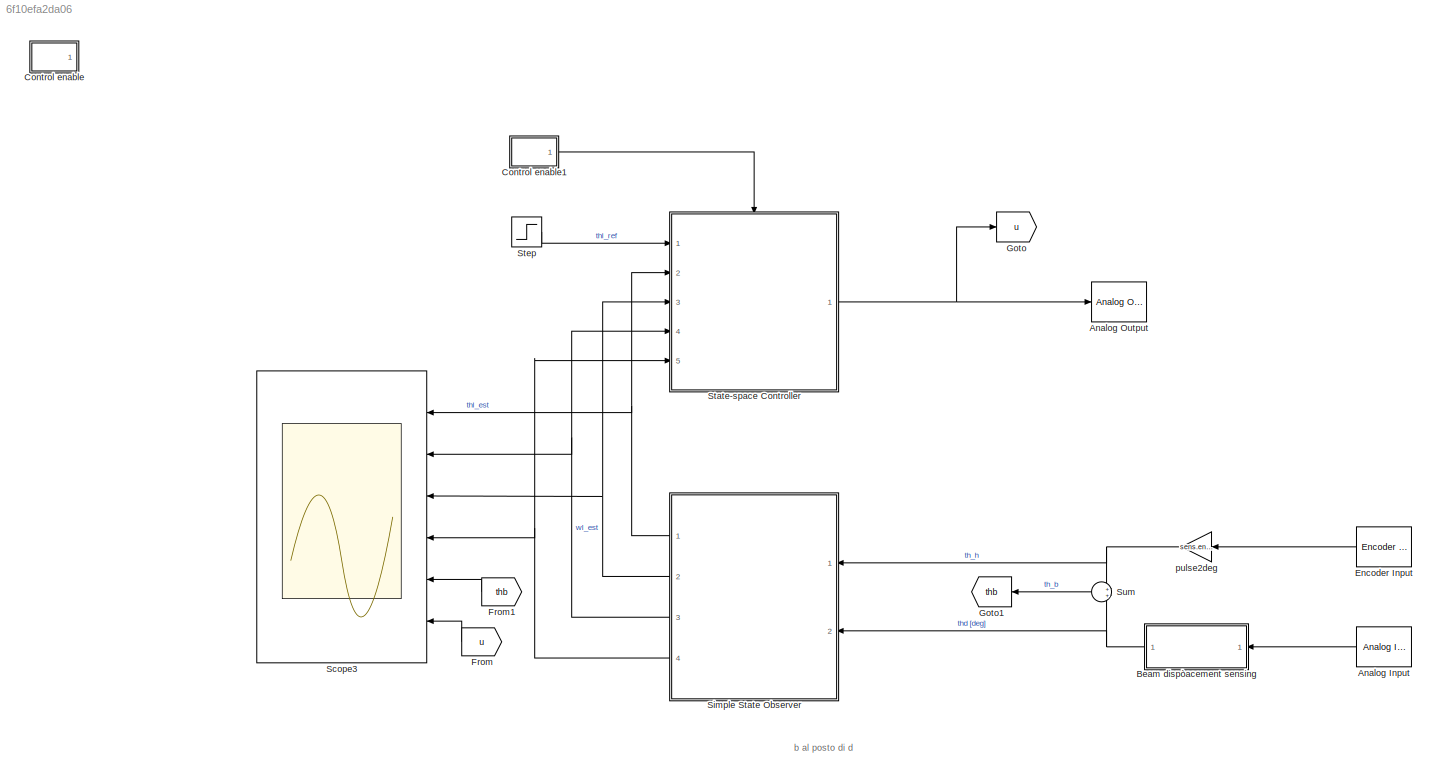
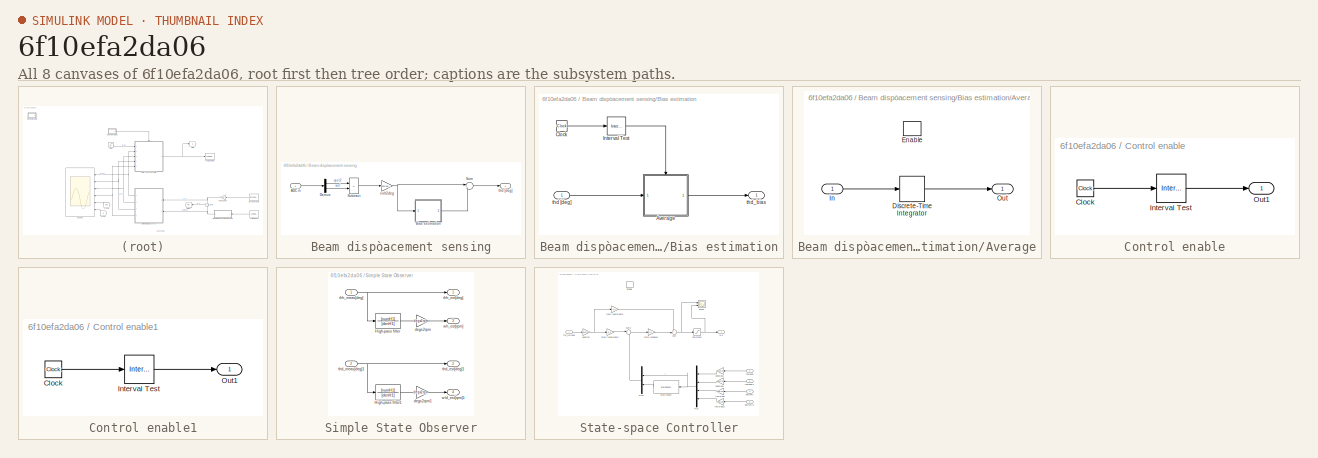
[diagram: thumbnail index - all 8 canvases of the model, root first then tree order]
MODEL slx_6f10efa2da06
KIND model
CONFIG AbsTol = auto
CONFIG EnableMultiTasking = off
CONFIG FixedStep = 0.001
CONFIG MaxStep = auto
CONFIG MinStep = auto
CONFIG RelTol = 1e-3
CONFIG SampleTimeConstraint = Unconstrained
CONFIG SolverName = ode3
CONFIG StartTime = 0.0
CONFIG StopTime = 5
BLOCK [Reference] Analog Input  REF=sldrtlib/Analog Input
  AttributesFormatString = National Instruments\nPCI-6221 [auto]
  Ports = [0, 1]
  SourceBlock = sldrtlib/Analog Input
  SourceProductBaseCode = WT
  SourceType = Simulink Desktop Real-Time Analog Input
BLOCK [Reference] Analog Output  REF=sldrtlib/Analog Output
  AttributesFormatString = National Instruments\nPCI-6221 [auto]
  Ports = [1]
  SourceBlock = sldrtlib/Analog Output
  SourceProductBaseCode = WT
  SourceType = Simulink Desktop Real-Time Analog Output
BLOCK [SubSystem] Beam dispòacement sensing
  Ports = [1, 1]
  RequestExecContextInheritance = off
BLOCK [Inport] Beam dispòacement sensing/ADC in
BLOCK [SubSystem] Beam dispòacement sensing/Bias estimation
  Ports = [1, 1]
  RequestExecContextInheritance = off
BLOCK [SubSystem] Beam dispòacement sensing/Bias estimation/Average
  Ports = [1, 1, 1]
  RequestExecContextInheritance = off
BLOCK [DiscreteIntegrator] Beam dispòacement sensing/Bias estimation/Average/Discrete-Time Integrator
  ICPrevOutput = DiscIntNeverNeededParam
  ICPrevScaledInput = DiscIntNeverNeededParam
  InitialConditionSetting = Auto
  Ports = [1, 1]
  SampleTime = 0.001
  gainval = 2.0
BLOCK [EnablePort] Beam dispòacement sensing/Bias estimation/Average/Enable
  Ports = []
BLOCK [Inport] Beam dispòacement sensing/Bias estimation/Average/In
BLOCK [Outport] Beam dispòacement sensing/Bias estimation/Average/Out
BLOCK [Clock] Beam dispòacement sensing/Bias estimation/Clock
BLOCK [Reference] Beam dispòacement sensing/Bias estimation/Interval Test  REF=simulink/Logic and Bit
Operations/Interval Test
  Ports = [1, 1]
  SourceBlock = simulink/Logic and Bit\nOperations/Interval Test
  SourceProductBaseCode = SL
  SourceType = Interval Test
BLOCK [Inport] Beam dispòacement sensing/Bias estimation/thd [deg]
BLOCK [Outport] Beam dispòacement sensing/Bias estimation/thd_bias
BLOCK [Demux] Beam dispòacement sensing/Demux
  Outputs = 2
  Ports = [1, 2]
BLOCK [Sum] Beam dispòacement sensing/Subtract
  IconShape = rectangular
  Inputs = +-
  Ports = [2, 1]
BLOCK [Sum] Beam dispòacement sensing/Sum
  Inputs = |+-
  Ports = [2, 1]
BLOCK [Outport] Beam dispòacement sensing/thd [deg]
BLOCK [Gain] Beam dispòacement sensing/volt2deg
  Gain = sens.pot2.V2deg
BLOCK [SubSystem] Control enable
  Ports = [0, 1]
  RequestExecContextInheritance = off
BLOCK [Clock] Control enable/Clock
BLOCK [Reference] Control enable/Interval Test  REF=simulink/Logic and Bit
Operations/Interval Test
  Ports = [1, 1]
  SourceBlock = simulink/Logic and Bit\nOperations/Interval Test
  SourceProductBaseCode = SL
  SourceType = Interval Test
BLOCK [Outport] Control enable/Out1
BLOCK [SubSystem] Control enable1
  Ports = [0, 1]
  RequestExecContextInheritance = off
BLOCK [Clock] Control enable1/Clock
BLOCK [Reference] Control enable1/Interval Test  REF=simulink/Logic and Bit
Operations/Interval Test
  Ports = [1, 1]
  SourceBlock = simulink/Logic and Bit\nOperations/Interval Test
  SourceProductBaseCode = SL
  SourceType = Interval Test
BLOCK [Outport] Control enable1/Out1
BLOCK [Reference] Encoder Input  REF=sldrtlib/Encoder Input
  AttributesFormatString = National Instruments\nPCI-6221 [auto]
  Ports = [0, 1]
  SourceBlock = sldrtlib/Encoder Input
  SourceProductBaseCode = WT
  SourceType = Simulink Desktop Real-Time Encoder Input
BLOCK [From] From
  GotoTag = u
BLOCK [From] From1
  GotoTag = thb
BLOCK [Goto] Goto
  GotoTag = u
BLOCK [Goto] Goto1
  GotoTag = thb
BLOCK [Scope] Scope3
  Floating = off
  NumInputPorts = 6
  Ports = [6]
  ScopeSpecificationString = Simulink.scopes.TimeScopeBlockCfg('CurrentConfiguration', extmgr.ConfigurationSet(extmgr.Configuration('Core','General UI',true),extmgr.Configuration('Core','Source UI',true),extmgr.Configuration('Sources','WiredSimulink',true,'DataLoggingVariableName','MotorData','DataLogging',true,'DataLoggingSaveFormat','StructureWithTime'),extmgr.Configuration('Visuals','Time Domain',true,'SerializedDisplays',...<+5027ch>
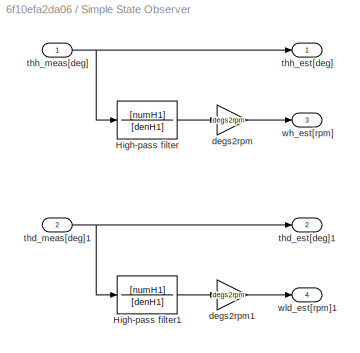
BLOCK [SubSystem] Simple State Observer
  Ports = [2, 4]
  RequestExecContextInheritance = off
BLOCK [TransferFcn] Simple State Observer/High-pass filter
  Denominator = [denH1]
  Numerator = [numH1]
BLOCK [TransferFcn] Simple State Observer/High-pass filter1
  Denominator = [denH1]
  Numerator = [numH1]
BLOCK [Gain] Simple State Observer/degs2rpm
  Gain = degs2rpm
BLOCK [Gain] Simple State Observer/degs2rpm1
  Gain = degs2rpm
BLOCK [Outport] Simple State Observer/thd_est[deg]1
  Port = 2
BLOCK [Inport] Simple State Observer/thd_meas[deg]1
  Port = 2
BLOCK [Outport] Simple State Observer/thh_est[deg]
BLOCK [Inport] Simple State Observer/thh_meas[deg]
BLOCK [Outport] Simple State Observer/wh_est[rpm]
  Port = 3
BLOCK [Outport] Simple State Observer/wld_est[rpm]1
  Port = 4
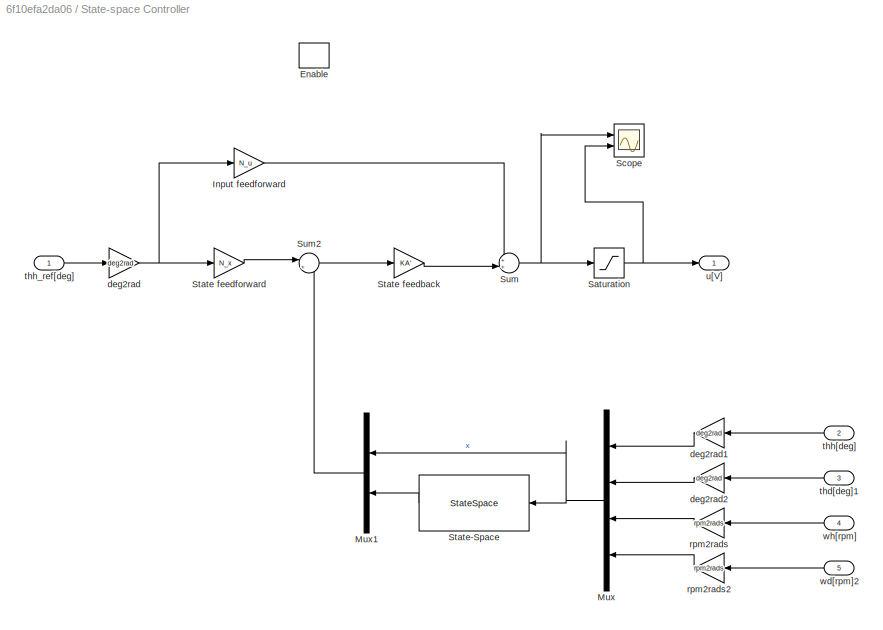
BLOCK [SubSystem] State-space Controller
  Ports = [5, 1, 1]
  RequestExecContextInheritance = off
BLOCK [EnablePort] State-space Controller/Enable
  Ports = []
BLOCK [Gain] State-space Controller/Input feedforward
  Gain = N_u
BLOCK [Mux] State-space Controller/Mux
  DisplayOption = bar
  Ports = [4, 1]
BLOCK [Mux] State-space Controller/Mux1
  DisplayOption = bar
  Inputs = 2
  Ports = [2, 1]
BLOCK [Saturate] State-space Controller/Saturation
  LowerLimit = -10
  UpperLimit = 10
BLOCK [Scope] State-space Controller/Scope
  Floating = off
  NumInputPorts = 2
  Ports = [2]
  ScopeSpecificationString = Simulink.scopes.TimeScopeBlockCfg('CurrentConfiguration', extmgr.ConfigurationSet(extmgr.Configuration('Core','General UI',true),extmgr.Configuration('Core','Source UI',true),extmgr.Configuration('Sources','WiredSimulink',true,'DataLoggingVariableName','ScopeData2'),extmgr.Configuration('Visuals','Time Domain',true,'SerializedDisplays',{struct('MinYLimReal','-11.1537','MaxYLimReal','38.75094','YLa...<+1379ch>
BLOCK [Gain] State-space Controller/State feedback
  Gain = KA'
  Multiplication = Matrix(u*K)
BLOCK [Gain] State-space Controller/State feedforward	
  Gain = N_x
  Multiplication = Matrix(u*K)
BLOCK [StateSpace] State-space Controller/State-Space
  A = AQ
  B = BQ
  C = eye(2)
  D = [zeros(2),zeros(2)]
  InitialCondition = 0
  Ports = [1, 1]
BLOCK [Sum] State-space Controller/Sum
  Inputs = ++|
  Ports = [2, 1]
BLOCK [Sum] State-space Controller/Sum2
  Inputs = |+-
  Ports = [2, 1]
BLOCK [Gain] State-space Controller/deg2rad
  Gain = deg2rad
BLOCK [Gain] State-space Controller/deg2rad1
  Gain = deg2rad
  NameLocation = top
BLOCK [Gain] State-space Controller/deg2rad2
  Gain = deg2rad
  NameLocation = top
BLOCK [Gain] State-space Controller/rpm2rads
  Gain = rpm2rads
BLOCK [Gain] State-space Controller/rpm2rads2
  Gain = rpm2rads
BLOCK [Inport] State-space Controller/thd[deg]1
  Port = 3
BLOCK [Inport] State-space Controller/thh[deg]
  Port = 2
BLOCK [Inport] State-space Controller/thh_ref[deg]
BLOCK [Outport] State-space Controller/u[V]
BLOCK [Inport] State-space Controller/wd[rpm]2
  Port = 5
BLOCK [Inport] State-space Controller/wh[rpm]
  Port = 4
BLOCK [Step] Step
  After = step_size
  SampleTime = 0.001
BLOCK [Sum] Sum
  NameLocation = top
  Ports = [2, 1]
BLOCK [Gain] pulse2deg
  Gain = sens.enc.pulse2deg
ANNOTATION (root): b al posto di d
LINE Analog Input:1 -> Beam dispòacement sensing:1
LINE Beam dispòacement sensing/ADC in:1 -> Beam dispòacement sensing/Demux:1
LINE Beam dispòacement sensing/Bias estimation/Average/Discrete-Time Integrator:1 -> Beam dispòacement sensing/Bias estimation/Average/Out:1
LINE Beam dispòacement sensing/Bias estimation/Average/In:1 -> Beam dispòacement sensing/Bias estimation/Average/Discrete-Time Integrator:1
LINE Beam dispòacement sensing/Bias estimation/Average:1 -> Beam dispòacement sensing/Bias estimation/thd_bias:1
LINE Beam dispòacement sensing/Bias estimation/Clock:1 -> Beam dispòacement sensing/Bias estimation/Interval Test:1
LINE Beam dispòacement sensing/Bias estimation/Interval Test:1 -> Beam dispòacement sensing/Bias estimation/Average:enable
LINE Beam dispòacement sensing/Bias estimation/thd [deg]:1 -> Beam dispòacement sensing/Bias estimation/Average:1
LINE Beam dispòacement sensing/Bias estimation:1 -> Beam dispòacement sensing/Sum:2
LINE Beam dispòacement sensing/Demux:1 -> Beam dispòacement sensing/Subtract:1
LINE Beam dispòacement sensing/Demux:2 -> Beam dispòacement sensing/Subtract:2
LINE Beam dispòacement sensing/Subtract:1 -> Beam dispòacement sensing/volt2deg:1
LINE Beam dispòacement sensing/Sum:1 -> Beam dispòacement sensing/thd [deg]:1
NET Beam dispòacement sensing/volt2deg:1 -> Beam dispòacement sensing/Bias estimation:1, Beam dispòacement sensing/Sum:1
NET Beam dispòacement sensing:1 -> Simple State Observer:2, Sum:2
LINE Control enable/Clock:1 -> Control enable/Interval Test:1
LINE Control enable/Interval Test:1 -> Control enable/Out1:1
LINE Control enable1/Clock:1 -> Control enable1/Interval Test:1
LINE Control enable1/Interval Test:1 -> Control enable1/Out1:1
LINE Control enable1:1 -> State-space Controller:enable
LINE Encoder Input:1 -> pulse2deg:1
LINE From1:1 -> Scope3:5
LINE From:1 -> Scope3:6
LINE Simple State Observer/High-pass filter1:1 -> Simple State Observer/degs2rpm1:1
LINE Simple State Observer/High-pass filter:1 -> Simple State Observer/degs2rpm:1
LINE Simple State Observer/degs2rpm1:1 -> Simple State Observer/wld_est[rpm]1:1
LINE Simple State Observer/degs2rpm:1 -> Simple State Observer/wh_est[rpm]:1
NET Simple State Observer/thd_meas[deg]1:1 -> Simple State Observer/High-pass filter1:1, Simple State Observer/thd_est[deg]1:1
NET Simple State Observer/thh_meas[deg]:1 -> Simple State Observer/High-pass filter:1, Simple State Observer/thh_est[deg]:1
NET Simple State Observer:1 -> Scope3:1, State-space Controller:2
NET Simple State Observer:2 -> Scope3:3, State-space Controller:3
NET Simple State Observer:3 -> Scope3:2, State-space Controller:4
NET Simple State Observer:4 -> Scope3:4, State-space Controller:5
LINE State-space Controller/Input feedforward:1 -> State-space Controller/Sum:1
LINE State-space Controller/Mux1:1 -> State-space Controller/Sum2:2
NET State-space Controller/Mux:1 -> State-space Controller/Mux1:1, State-space Controller/State-Space:1
NET State-space Controller/Saturation:1 -> State-space Controller/Scope:2, State-space Controller/u[V]:1
LINE State-space Controller/State feedback:1 -> State-space Controller/Sum:2
LINE State-space Controller/State feedforward	:1 -> State-space Controller/Sum2:1
LINE State-space Controller/State-Space:1 -> State-space Controller/Mux1:2
LINE State-space Controller/Sum2:1 -> State-space Controller/State feedback:1
NET State-space Controller/Sum:1 -> State-space Controller/Saturation:1, State-space Controller/Scope:1
LINE State-space Controller/deg2rad1:1 -> State-space Controller/Mux:1
LINE State-space Controller/deg2rad2:1 -> State-space Controller/Mux:2
NET State-space Controller/deg2rad:1 -> State-space Controller/Input feedforward:1, State-space Controller/State feedforward	:1
LINE State-space Controller/rpm2rads2:1 -> State-space Controller/Mux:4
LINE State-space Controller/rpm2rads:1 -> State-space Controller/Mux:3
LINE State-space Controller/thd[deg]1:1 -> State-space Controller/deg2rad2:1
LINE State-space Controller/thh[deg]:1 -> State-space Controller/deg2rad1:1
LINE State-space Controller/thh_ref[deg]:1 -> State-space Controller/deg2rad:1
LINE State-space Controller/wd[rpm]2:1 -> State-space Controller/rpm2rads2:1
LINE State-space Controller/wh[rpm]:1 -> State-space Controller/rpm2rads:1
NET State-space Controller:1 -> Analog Output:1, Goto:1
LINE Step:1 -> State-space Controller:1
LINE Sum:1 -> Goto1:1
NET pulse2deg:1 -> Simple State Observer:1, Sum:1
note: NET lines group one-source signal fan-out (src -> all destinations, sorted); 1:1 wires keep LINE
